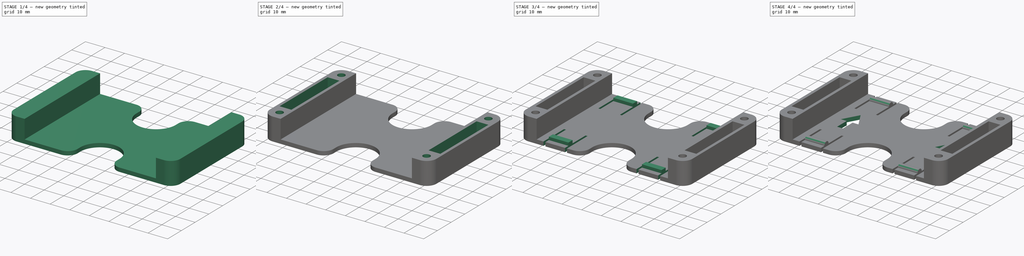
[diagram: build sequence overview — one tinted view per stage of 4, left to right]
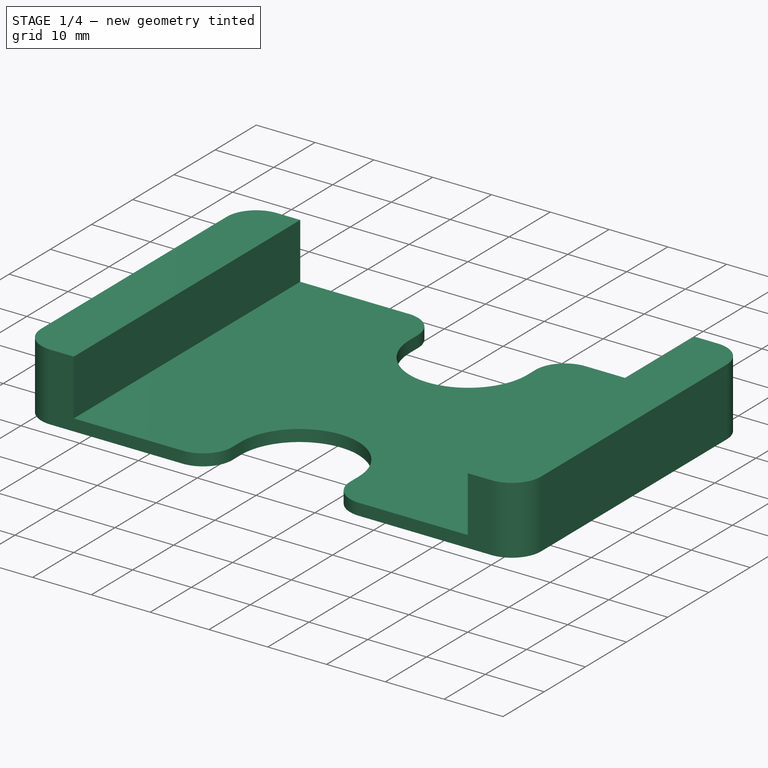
[diagram: stage 1 of 4 — iso view after this stage's code; geometry added in this stage tinted green]
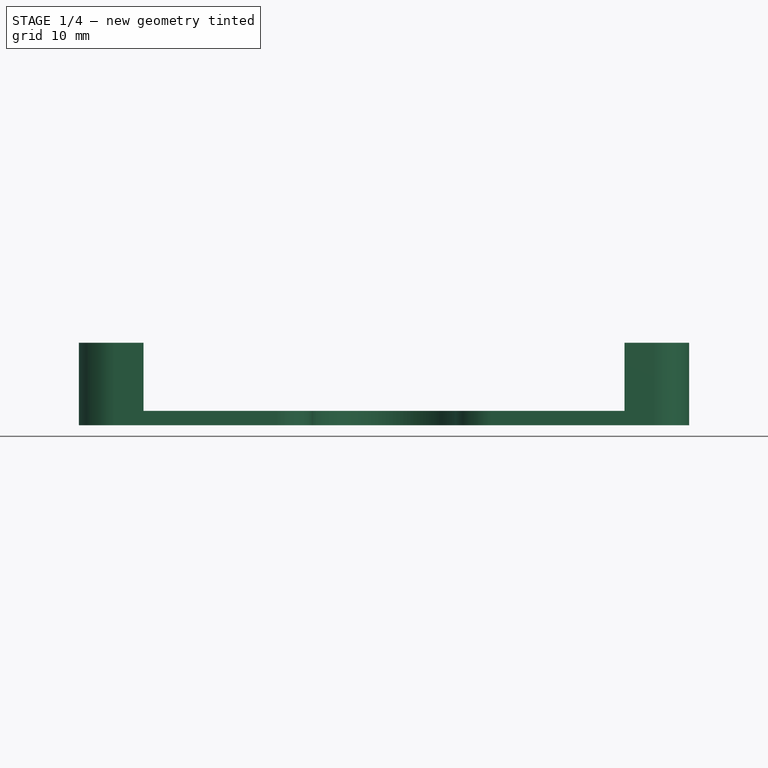
[diagram: stage 1 of 4 — front view after this stage's code; geometry added in this stage tinted green]
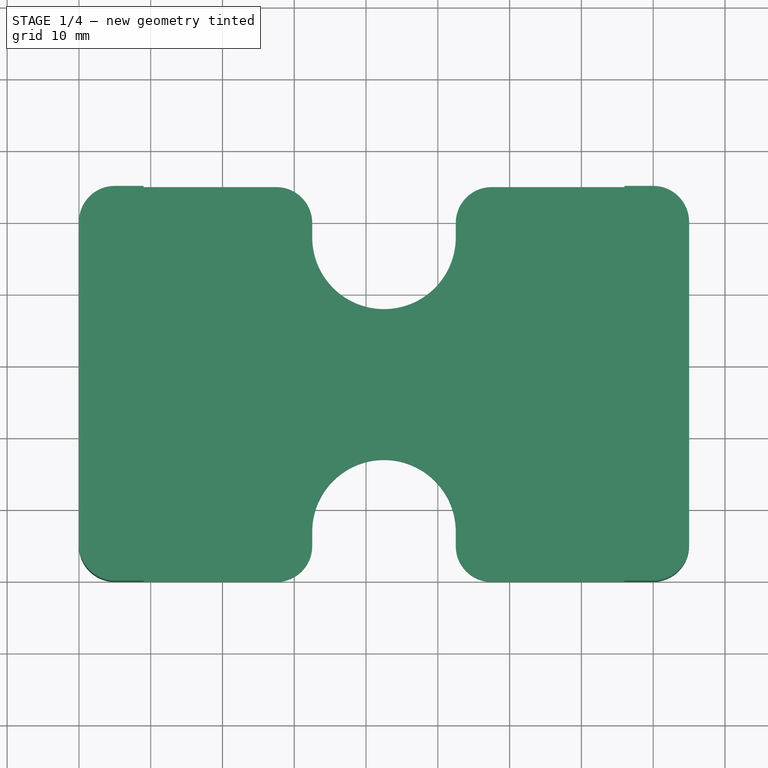
[diagram: stage 1 of 4 — top view after this stage's code; geometry added in this stage tinted green]
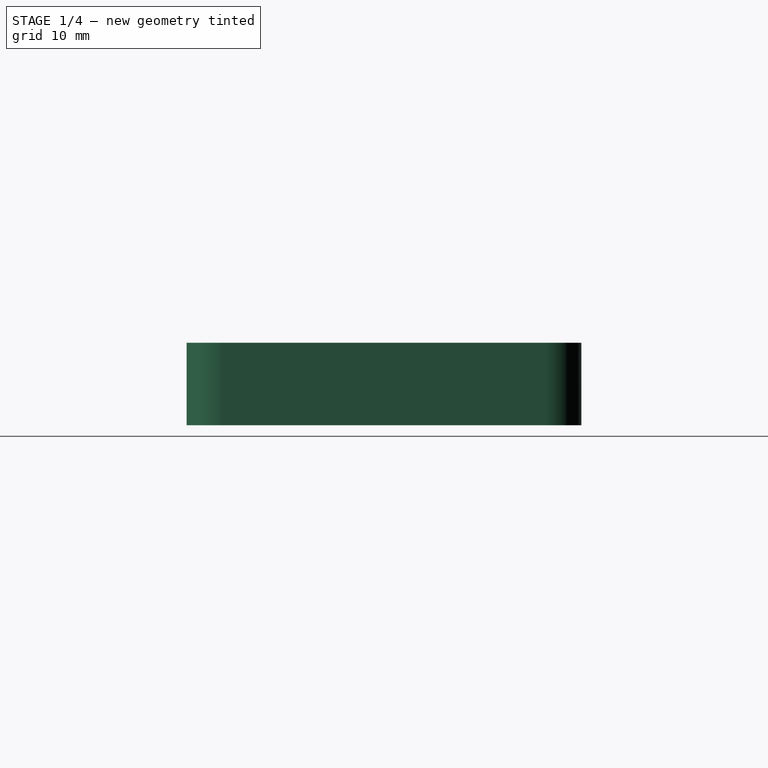
[diagram: stage 1 of 4 — right view after this stage's code; geometry added in this stage tinted green]
FCSTD DOCUMENT
Label: 18650case
objects: Sketcher::SketchObject×9, PartDesign::Pocket×7, PartDesign::Pad×2, PartDesign::Fillet×1
note: 21 computed .brp shape members not serialized (recipe doc carries the construction recipe); baked Part::Feature solids carry a one-line shape summary decoded from their .brp

FEATURE [Sketcher::SketchObject] Sketch
  sketch-geometry (50):
    g0: ArcOfCircle CenterX=5 CenterY=5 CenterZ=0 NormalX=0 NormalY=0 NormalZ=1 Radius=5 StartAngle=3.14159 EndAngle=4.71239
    g1: ArcOfCircle CenterX=80 CenterY=5 CenterZ=0 NormalX=0 NormalY=0 NormalZ=1 Radius=5 StartAngle=4.71239 EndAngle=6.28319
    g2: ArcOfCircle CenterX=5 CenterY=50 CenterZ=0 NormalX=0 NormalY=0 NormalZ=1 Radius=5 StartAngle=1.5708 EndAngle=3.14159
    g3: ArcOfCircle CenterX=80 CenterY=50 CenterZ=0 NormalX=0 NormalY=0 NormalZ=1 Radius=5 StartAngle=0 EndAngle=1.5708
    g4: LineSegment StartX=85 StartY=50 StartZ=0 EndX=85 EndY=5 EndZ=0
    g5: LineSegment [constr] StartX=85 StartY=5 StartZ=0 EndX=80 EndY=5 EndZ=0
    g6: LineSegment [constr] StartX=80 StartY=5 StartZ=0 EndX=80 EndY=0 EndZ=0
    g7: LineSegment [constr] StartX=5 StartY=0 StartZ=0 EndX=5 EndY=5 EndZ=0
    g8: LineSegment [constr] StartX=5 StartY=5 StartZ=0 EndX=0 EndY=5 EndZ=0
    g9: LineSegment StartX=0 StartY=5 StartZ=0 EndX=0 EndY=50 EndZ=0
    g10: LineSegment [constr] StartX=0 StartY=50 StartZ=0 EndX=5 EndY=50 EndZ=0
    g11: LineSegment [constr] StartX=5 StartY=50 StartZ=0 EndX=5 EndY=55 EndZ=0
    g12: LineSegment [constr] StartX=80 StartY=55 StartZ=0 EndX=80 EndY=50 EndZ=0
    g13: LineSegment [constr] StartX=80 StartY=50 StartZ=0 EndX=85 EndY=50 EndZ=0
    g14: ArcOfCircle CenterX=42.5 CenterY=48 CenterZ=0 NormalX=0 NormalY=0 NormalZ=1 Radius=10 StartAngle=3.14159 EndAngle=6.28319
    g15: ArcOfCircle CenterX=57.5 CenterY=50 CenterZ=0 NormalX=0 NormalY=0 NormalZ=1 Radius=5 StartAngle=1.5708 EndAngle=3.14159
    g16: ArcOfCircle CenterX=27.5 CenterY=50 CenterZ=0 NormalX=0 NormalY=0 NormalZ=1 Radius=5 StartAngle=0 EndAngle=1.5708
    g17: LineSegment StartX=32.5 StartY=50 StartZ=0 EndX=32.5 EndY=48 EndZ=0
    g18: LineSegment StartX=52.5 StartY=50 StartZ=0 EndX=52.5 EndY=48 EndZ=0
    g19: LineSegment StartX=57.5 StartY=55 StartZ=0 EndX=80 EndY=55 EndZ=0
    g20: LineSegment StartX=5 StartY=55 StartZ=0 EndX=27.5 EndY=55 EndZ=0
    g21: LineSegment [constr] StartX=57.5 StartY=55 StartZ=0 EndX=57.5 EndY=50 EndZ=0
    g22: LineSegment [constr] StartX=57.5 StartY=50 StartZ=0 EndX=52.5 EndY=50 EndZ=0
    g23: LineSegment [constr] StartX=27.5 StartY=55 StartZ=0 EndX=27.5 EndY=50 EndZ=0
    g24: LineSegment [constr] StartX=27.5 StartY=50 StartZ=0 EndX=32.5 EndY=50 EndZ=0
    g25: LineSegment [constr] StartX=32.5 StartY=48 StartZ=0 EndX=42.5 EndY=48 EndZ=0
    g26: LineSegment [constr] StartX=42.5 StartY=48 StartZ=0 EndX=52.5 EndY=48 EndZ=0
    g27: ArcOfCircle CenterX=42.5 CenterY=7 CenterZ=0 NormalX=0 NormalY=0 NormalZ=1 Radius=10 StartAngle=0 EndAngle=3.14159
    g28: ArcOfCircle CenterX=57.5 CenterY=5 CenterZ=0 NormalX=0 NormalY=0 NormalZ=1 Radius=5 StartAngle=3.14159 EndAngle=4.71239
    g29: ArcOfCircle CenterX=27.5 CenterY=5 CenterZ=0 NormalX=0 NormalY=0 NormalZ=1 Radius=5 StartAngle=4.71239 EndAngle=6.28319
    g30: LineSegment StartX=5 StartY=0 StartZ=0 EndX=27.5 EndY=0 EndZ=0
    g31: LineSegment [constr] StartX=27.5 StartY=0 StartZ=0 EndX=27.5 EndY=5 EndZ=0
    g32: LineSegment [constr] StartX=27.5 StartY=5 StartZ=0 EndX=32.5 EndY=5 EndZ=0
    g33: LineSegment StartX=32.5 StartY=5 StartZ=0 EndX=32.5 EndY=7 EndZ=0
    g34: LineSegment [constr] StartX=32.5 StartY=7 StartZ=0 EndX=42.5 EndY=7 EndZ=0
    g35: LineSegment [constr] StartX=42.5 StartY=7 StartZ=0 EndX=52.5 EndY=7 EndZ=0
    g36: LineSegment StartX=52.5 StartY=7 StartZ=0 EndX=52.5 EndY=5 EndZ=0
    g37: LineSegment [constr] StartX=52.5 StartY=5 StartZ=0 EndX=57.5 EndY=5 EndZ=0
    g38: LineSegment [constr] StartX=57.5 StartY=5 StartZ=0 EndX=57.5 EndY=0 EndZ=0
    g39: LineSegment StartX=57.5 StartY=0 StartZ=0 EndX=80 EndY=0 EndZ=0
    g40: LineSegment [constr] StartX=42.5 StartY=48 StartZ=0 EndX=42.5 EndY=7 EndZ=0
    g41: LineSegment [constr] StartX=5 StartY=50 StartZ=0 EndX=27.5 EndY=50 EndZ=0
    g42: LineSegment [constr] StartX=27.5 StartY=55 StartZ=0 EndX=57.5 EndY=55 EndZ=0
    g43: LineSegment [constr] StartX=57.5 StartY=50 StartZ=0 EndX=80 EndY=50 EndZ=0
    g44: LineSegment [constr] StartX=5 StartY=5 StartZ=0 EndX=27.5 EndY=5 EndZ=0
    g45: LineSegment [constr] StartX=57.5 StartY=5 StartZ=0 EndX=80 EndY=5 EndZ=0
    g46: LineSegment [constr] StartX=27.5 StartY=0 StartZ=0 EndX=57.5 EndY=0 EndZ=0
    g47: LineSegment [constr] StartX=32.5 StartY=50 StartZ=0 EndX=52.5 EndY=50 EndZ=0
    g48: LineSegment [constr] StartX=32.5 StartY=5 StartZ=0 EndX=52.5 EndY=5 EndZ=0
    g49: LineSegment [constr] StartX=80 StartY=50 StartZ=0 EndX=80 EndY=5 EndZ=0
  constraints (130):
    c: Coincident(g4,g3)
    c: Coincident(g4,g1)
    c: Coincident(g4,g5)
    c: Coincident(g5,g1)
    c: Horizontal(g5)
    c: Coincident(g5,g6)
    c: Coincident(g6,g1)
    c: Coincident(g7,g0)
    c: Vertical(g7)
    c: Coincident(g7,g8)
    c: Coincident(g8,g0)
    c: Horizontal(g8)
    c: Coincident(g8,g9)
    c: Coincident(g9,g2)
    c: Vertical(g9)
    c: Coincident(g9,g10)
    c: Coincident(g10,g2)
    c: Horizontal(g10)
    c: Coincident(g10,g11)
    c: Coincident(g11,g2)
    c: Vertical(g11)
    c: Coincident(g12,g3)
    c: Coincident(g12,g13)
    c: Coincident(g13,g3)
    c: Horizontal(g13)
    c: Vertical(g4)
    c: Vertical(g6)
    c: Vertical(g12)
    c: Radius(g2) = 5
    c: DistanceX(g0) = 0
    c: DistanceY(g0) = 0
    c: Coincident(g17,g16)
    c: Coincident(g17,g14)
    c: Vertical(g17)
    c: Coincident(g18,g15)
    c: Coincident(g18,g14)
    c: Vertical(g18)
    c: Coincident(g19,g15)
    c: Coincident(g19,g3)
    c: Horizontal(g19)
    c: Coincident(g20,g2)
    c: Coincident(g20,g16)
    c: Horizontal(g20)
    c: Coincident(g21,g15)
    c: Coincident(g21,g15)
    c: Coincident(g21,g22)
    c: Coincident(g22,g15)
    c: Horizontal(g22)
    c: Vertical(g21)
    c: Coincident(g23,g16)
    c: Coincident(g23,g16)
    c: Coincident(g23,g24)
    c: Coincident(g24,g16)
    c: Horizontal(g24)
    c: Vertical(g23)
    c: Coincident(g25,g14)
    c: Coincident(g25,g14)
    c: Coincident(g25,g26)
    c: Coincident(g26,g14)
    c: Horizontal(g26)
    c: Horizontal(g25)
    c: Coincident(g12,g3)
    c: Coincident(g30,g0)
    c: Coincident(g30,g29)
    c: Horizontal(g30)
    c: Coincident(g30,g31)
    c: Coincident(g31,g29)
    c: Vertical(g31)
    c: Coincident(g31,g32)
    c: Coincident(g32,g29)
    c: Horizontal(g32)
    c: Coincident(g32,g33)
    c: Coincident(g33,g27)
    c: Coincident(g33,g34)
    c: Coincident(g34,g27)
    c: Horizontal(g34)
    c: Coincident(g34,g35)
    c: Coincident(g35,g27)
    c: Coincident(g35,g36)
    c: Coincident(g36,g28)
    c: Vertical(g36)
    c: Coincident(g36,g37)
    c: Coincident(g37,g28)
    c: Coincident(g37,g38)
    c: Coincident(g38,g28)
    c: Vertical(g38)
    c: Coincident(g38,g39)
    c: Coincident(g39,g1)
    c: Horizontal(g39)
    c: Horizontal(g37)
    c: Horizontal(g35)
    c: Vertical(g33)
    c: Coincident(g40,g14)
    c: Coincident(g40,g27)
    c: Vertical(g40)
    c: DistanceX(g0,g1) = 85
    c: DistanceX(g27,g27) = 20
    c: DistanceY(g1,g3) = 55
    c: Coincident(g41,g2)
    c: Coincident(g41,g16)
    c: Horizontal(g41)
    c: Coincident(g42,g16)
    c: Coincident(g42,g15)
    c: Horizontal(g42)
    c: Coincident(g43,g15)
    c: Coincident(g43,g3)
    c: Horizontal(g43)
    c: Coincident(g44,g0)
    c: Coincident(g44,g29)
    c: Horizontal(g44)
    c: Coincident(g45,g28)
    c: Coincident(g45,g1)
    c: Horizontal(g45)
    c: Coincident(g46,g29)
    c: Coincident(g46,g28)
    c: Horizontal(g46)
    c: Coincident(g47,g16)
    c: Coincident(g47,g15)
    c: Horizontal(g47)
    c: Coincident(g48,g29)
    c: Coincident(g48,g28)
    c: Horizontal(g48)
    c: Equal(g39,g30)
    c: Equal(g17,g33)
    c: Coincident(g7,g0)
    c: Coincident(g49,g3)
    c: Coincident(g49,g1)
    c: Vertical(g49)
    c: Equal(g14,g27)
    c: DistanceY(g27,g1) = -7
FEATURE [PartDesign::Pad] Pad
  Length = 11.5
  MirroredExtent = false
  Sketch = -> Sketch
FEATURE [Sketcher::SketchObject] Sketch001
  Placement = pos=(0,0,11.5) rot=(0,0,1;0rad)
  Support = -> Pad [Face22]
  sketch-geometry (4):
    g0: LineSegment StartX=9 StartY=60 StartZ=0 EndX=76 EndY=60 EndZ=0
    g1: LineSegment StartX=76 StartY=60 StartZ=0 EndX=76 EndY=-5 EndZ=0
    g2: LineSegment StartX=76 StartY=-5 StartZ=0 EndX=9 EndY=-5 EndZ=0
    g3: LineSegment StartX=9 StartY=-5 StartZ=0 EndX=9 EndY=60 EndZ=0
  constraints (12):
    c: Coincident(g0,g1)
    c: Coincident(g1,g2)
    c: Coincident(g2,g3)
    c: Coincident(g3,g0)
    c: Horizontal(g0)
    c: Horizontal(g2)
    c: Vertical(g1)
    c: Vertical(g3)
    c: DistanceX(g2) = 9
    c: DistanceY(g2) = -5
    c: DistanceY(g1) = -65
    c: DistanceX(g2) = -67
FEATURE [PartDesign::Pocket] Pocket
  Length = 9.5
  Sketch = -> Sketch001
  Type = 0
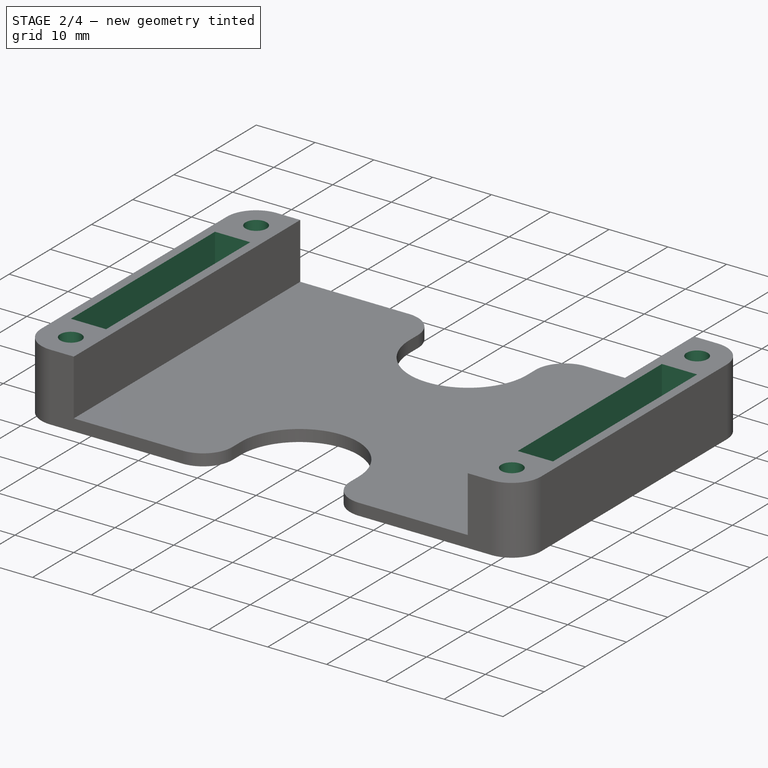
[diagram: stage 2 of 4 — iso view after this stage's code; geometry added in this stage tinted green]
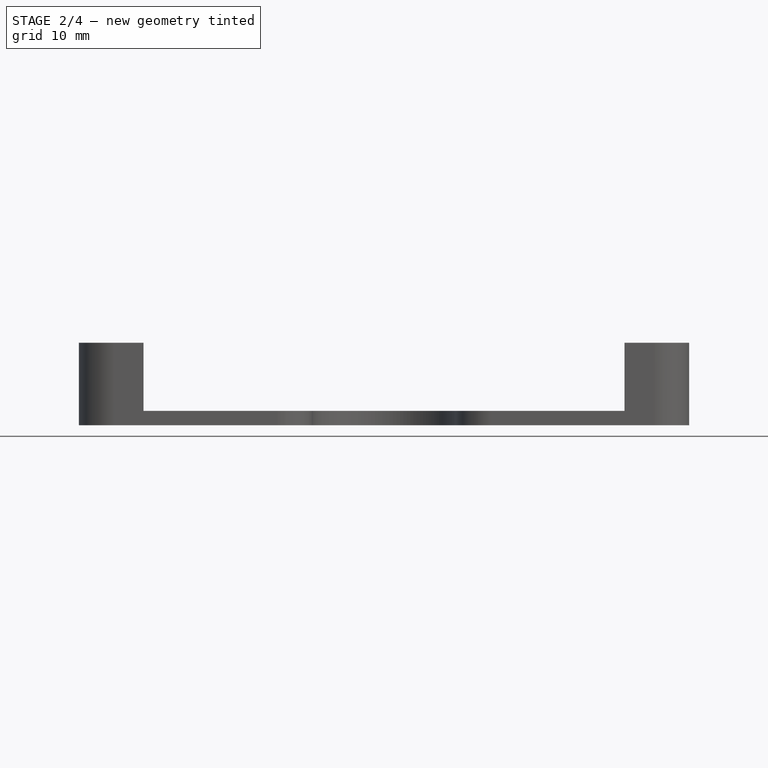
[diagram: stage 2 of 4 — front view after this stage's code; geometry added in this stage tinted green]
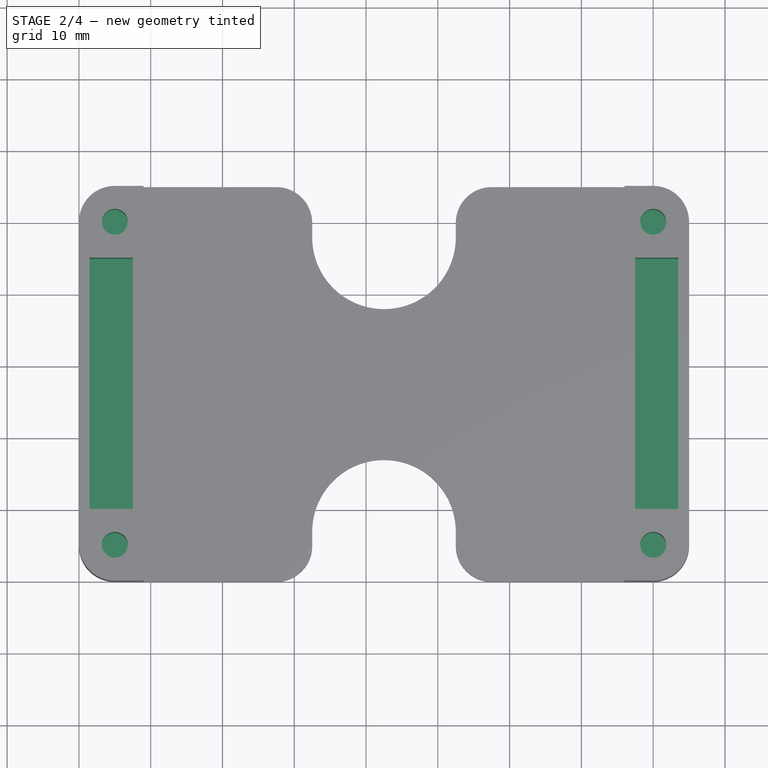
[diagram: stage 2 of 4 — top view after this stage's code; geometry added in this stage tinted green]
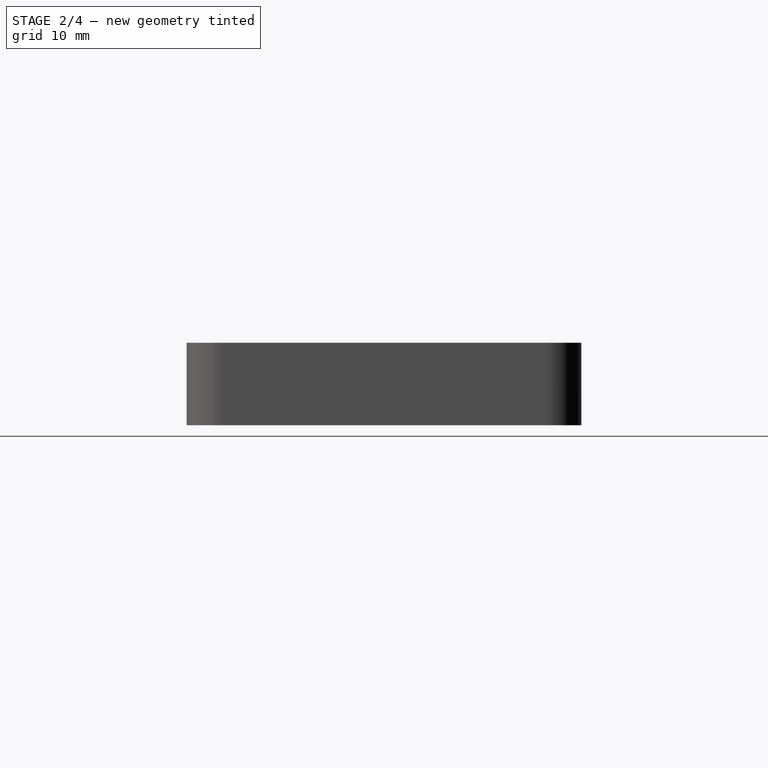
[diagram: stage 2 of 4 — right view after this stage's code; geometry added in this stage tinted green]
FEATURE [Sketcher::SketchObject] Sketch002
  Placement = pos=(0,0,0) rot=(1,0,0;3.14159rad)
  Support = -> Pocket [Face4]
  sketch-geometry (24):
    g0: LineSegment StartX=2 StartY=-51.7321 StartZ=0 EndX=2 EndY=-48.2679 EndZ=0
    g1: LineSegment StartX=2 StartY=-48.2679 StartZ=0 EndX=5 EndY=-46.5359 EndZ=0
    g2: LineSegment StartX=5 StartY=-46.5359 StartZ=0 EndX=8 EndY=-48.2679 EndZ=0
    g3: LineSegment StartX=8 StartY=-48.2679 StartZ=0 EndX=8 EndY=-51.7321 EndZ=0
    g4: LineSegment StartX=8 StartY=-51.7321 StartZ=0 EndX=5 EndY=-53.4641 EndZ=0
    g5: LineSegment StartX=5 StartY=-53.4641 StartZ=0 EndX=2 EndY=-51.7321 EndZ=0
    g6: LineSegment [constr] StartX=2 StartY=-51.7321 StartZ=0 EndX=5 EndY=-50 EndZ=0
    g7: LineSegment [constr] StartX=5 StartY=-50 StartZ=0 EndX=2 EndY=-48.2679 EndZ=0
    g8: LineSegment [constr] StartX=8 StartY=-48.2679 StartZ=0 EndX=5 EndY=-50 EndZ=0
    g9: LineSegment [constr] StartX=5 StartY=-50 StartZ=0 EndX=8 EndY=-51.7321 EndZ=0
    g10: LineSegment [constr] StartX=5 StartY=-50 StartZ=0 EndX=5 EndY=-53.4641 EndZ=0
    g11: Circle CenterX=80 CenterY=-50 CenterZ=0 NormalX=0 NormalY=0 NormalZ=1 Radius=3
    g12: LineSegment StartX=77 StartY=-3.26795 StartZ=0 EndX=77 EndY=-6.73205 EndZ=0
    g13: LineSegment StartX=77 StartY=-6.73205 StartZ=0 EndX=80 EndY=-8.4641 EndZ=0
    g14: LineSegment StartX=80 StartY=-8.4641 StartZ=0 EndX=83 EndY=-6.73205 EndZ=0
    g15: LineSegment StartX=83 StartY=-6.73205 StartZ=0 EndX=83 EndY=-3.26795 EndZ=0
    g16: LineSegment StartX=83 StartY=-3.26795 StartZ=0 EndX=80 EndY=-1.5359 EndZ=0
    g17: LineSegment StartX=80 StartY=-1.5359 StartZ=0 EndX=77 EndY=-3.26795 EndZ=0
    g18: LineSegment [constr] StartX=77 StartY=-6.73205 StartZ=0 EndX=80 EndY=-5 EndZ=0
    g19: LineSegment [constr] StartX=80 StartY=-5 StartZ=0 EndX=77 EndY=-3.26795 EndZ=0
    g20: LineSegment [constr] StartX=83 StartY=-3.26795 StartZ=0 EndX=80 EndY=-5 EndZ=0
    g21: LineSegment [constr] StartX=80 StartY=-5 StartZ=0 EndX=83 EndY=-6.73205 EndZ=0
    g22: LineSegment [constr] StartX=80 StartY=-5 StartZ=0 EndX=80 EndY=-8.4641 EndZ=0
    g23: Circle CenterX=5 CenterY=-5 CenterZ=0 NormalX=0 NormalY=0 NormalZ=1 Radius=3
  constraints (64):
    c: Vertical(g0)
    c: Coincident(g0,g1)
    c: Coincident(g1,g2)
    c: Coincident(g2,g3)
    c: Vertical(g3)
    c: Coincident(g3,g4)
    c: Coincident(g4,g5)
    c: Coincident(g5,g0)
    c: Coincident(g6,g0)
    c: Coincident(g6,g7)
    c: Coincident(g7,g0)
    c: Coincident(g8,g6)
    c: Coincident(g8,g9)
    c: Coincident(g9,g3)
    c: Coincident(g10,g6)
    c: Coincident(g10,g4)
    c: Vertical(g10)
    c: Equal(g7,g6)
    c: Equal(g6,g10)
    c: Equal(g10,g9)
    c: Equal(g9,g8)
    c: Equal(g4,g5)
    c: Equal(g5,g0)
    c: Equal(g0,g1)
    c: Equal(g1,g2)
    c: DistanceX(g0,g3) = 6
    c: Coincident(g2,g8)
    c: DistanceX(g6) = 5
    c: DistanceY(g6) = -50
    c: Radius(g11) = 3
    c: DistanceX(g11) = 80
    c: DistanceY(g11) = -50
    c: Vertical(g12)
    c: Coincident(g12,g13)
    c: Coincident(g13,g14)
    c: Coincident(g14,g15)
    c: Vertical(g15)
    c: Coincident(g15,g16)
    c: Coincident(g16,g17)
    c: Coincident(g17,g12)
    c: Coincident(g18,g12)
    c: Coincident(g18,g19)
    c: Coincident(g19,g12)
    c: Coincident(g20,g18)
    c: Coincident(g20,g21)
    c: Coincident(g21,g14)
    c: Equal(g14,g13)
    c: Equal(g13,g12)
    c: Equal(g12,g17)
    c: Equal(g17,g16)
    c: Coincident(g22,g18)
    c: Coincident(g22,g13)
    c: Equal(g20,g21)
    c: Equal(g21,g22)
    c: Equal(g22,g18)
    c: Equal(g18,g19)
    c: Vertical(g22)
    c: Coincident(g15,g20)
    c: DistanceX(g12,g14) = 6
    c: DistanceX(g18) = 80
    c: DistanceY(g18) = -5
    c: Radius(g23) = 3
    c: DistanceX(g23) = 5
    c: DistanceY(g23) = -5
FEATURE [PartDesign::Pocket] Pocket001
  Length = 3
  Sketch = -> Sketch002
  Type = 0
FEATURE [Sketcher::SketchObject] Sketch003
  Placement = pos=(0,0,11.5) rot=(0,0,1;0rad)
  Support = -> Pocket001 [Face6]
  sketch-geometry (10):
    g0: LineSegment StartX=7.5 StartY=45 StartZ=0 EndX=1.5 EndY=45 EndZ=0
    g1: LineSegment StartX=1.5 StartY=45 StartZ=0 EndX=1.5 EndY=10 EndZ=0
    g2: LineSegment StartX=1.5 StartY=10 StartZ=0 EndX=7.5 EndY=10 EndZ=0
    g3: LineSegment StartX=7.5 StartY=10 StartZ=0 EndX=7.5 EndY=45 EndZ=0
    g4: LineSegment StartX=77.5 StartY=45 StartZ=0 EndX=83.5 EndY=45 EndZ=0
    g5: LineSegment StartX=83.5 StartY=45 StartZ=0 EndX=83.5 EndY=10 EndZ=0
    g6: LineSegment StartX=83.5 StartY=10 StartZ=0 EndX=77.5 EndY=10 EndZ=0
    g7: LineSegment StartX=77.5 StartY=10 StartZ=0 EndX=77.5 EndY=45 EndZ=0
    g8: LineSegment [constr] StartX=7.5 StartY=45 StartZ=0 EndX=77.5 EndY=45 EndZ=0
    g9: LineSegment [constr] StartX=7.5 StartY=10 StartZ=0 EndX=77.5 EndY=10 EndZ=0
  constraints (28):
    c: Coincident(g0,g1)
    c: Coincident(g1,g2)
    c: Coincident(g2,g3)
    c: Coincident(g3,g0)
    c: Horizontal(g0)
    c: Horizontal(g2)
    c: Vertical(g1)
    c: Vertical(g3)
    c: Coincident(g4,g5)
    c: Coincident(g5,g6)
    c: Coincident(g6,g7)
    c: Coincident(g7,g4)
    c: Horizontal(g4)
    c: Horizontal(g6)
    c: Vertical(g5)
    c: Vertical(g7)
    c: Coincident(g8,g0)
    c: Coincident(g8,g4)
    c: Coincident(g9,g2)
    c: Coincident(g9,g6)
    c: Horizontal(g9)
    c: Horizontal(g8)
    c: DistanceX(g0) = -6
    c: DistanceX(g4) = 6
    c: DistanceX(g8) = 70
    c: DistanceX(g1) = 1.5
    c: DistanceY(g1) = 10
    c: DistanceY(g1) = -35
FEATURE [PartDesign::Pocket] Pocket002
  Length = 9.5
  Sketch = -> Sketch003
  Type = 0
FEATURE [Sketcher::SketchObject] Sketch004
  Placement = pos=(0,0,11.5) rot=(0,0,1;0rad)
  Support = -> Pocket002 [Face6]
  sketch-geometry (8):
    g0: Circle CenterX=5 CenterY=50 CenterZ=0 NormalX=0 NormalY=0 NormalZ=1 Radius=1.8
    g1: Circle CenterX=80 CenterY=50 CenterZ=0 NormalX=0 NormalY=0 NormalZ=1 Radius=1.8
    g2: Circle CenterX=80 CenterY=5 CenterZ=0 NormalX=0 NormalY=0 NormalZ=1 Radius=1.8
    g3: Circle CenterX=5 CenterY=5 CenterZ=0 NormalX=0 NormalY=0 NormalZ=1 Radius=1.8
    g4: LineSegment [constr] StartX=5 StartY=50 StartZ=0 EndX=80 EndY=50 EndZ=0
    g5: LineSegment [constr] StartX=80 StartY=50 StartZ=0 EndX=80 EndY=5 EndZ=0
    g6: LineSegment [constr] StartX=80 StartY=5 StartZ=0 EndX=5 EndY=5 EndZ=0
    g7: LineSegment [constr] StartX=5 StartY=5 StartZ=0 EndX=5 EndY=50 EndZ=0
  constraints (20):
    c: Coincident(g4,g5)
    c: Coincident(g5,g6)
    c: Coincident(g6,g7)
    c: Coincident(g7,g4)
    c: Horizontal(g4)
    c: Horizontal(g6)
    c: Vertical(g5)
    c: Vertical(g7)
    c: Coincident(g1,g4)
    c: Coincident(g0,g4)
    c: Coincident(g3,g6)
    c: Coincident(g2,g5)
    c: DistanceX(g3) = 5
    c: DistanceY(g3) = 5
    c: Equal(g3,g2)
    c: Equal(g2,g1)
    c: Equal(g1,g0)
    c: Radius(g0) = 1.8
    c: DistanceX(g6) = -75
    c: DistanceY(g7) = 45
FEATURE [PartDesign::Pocket] Pocket003
  Length = 8.3
  Sketch = -> Sketch004
  Type = 0
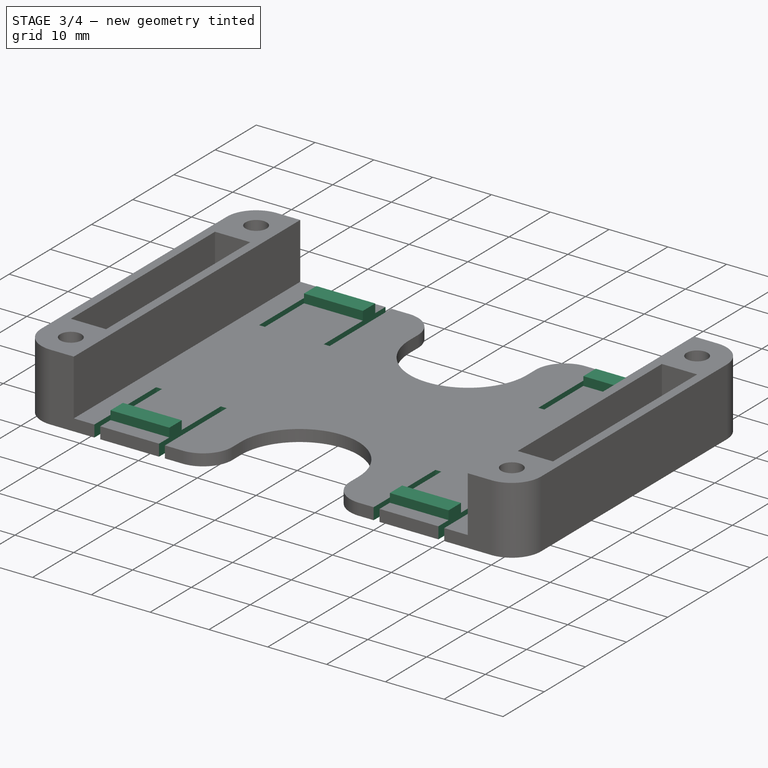
[diagram: stage 3 of 4 — iso view after this stage's code; geometry added in this stage tinted green]
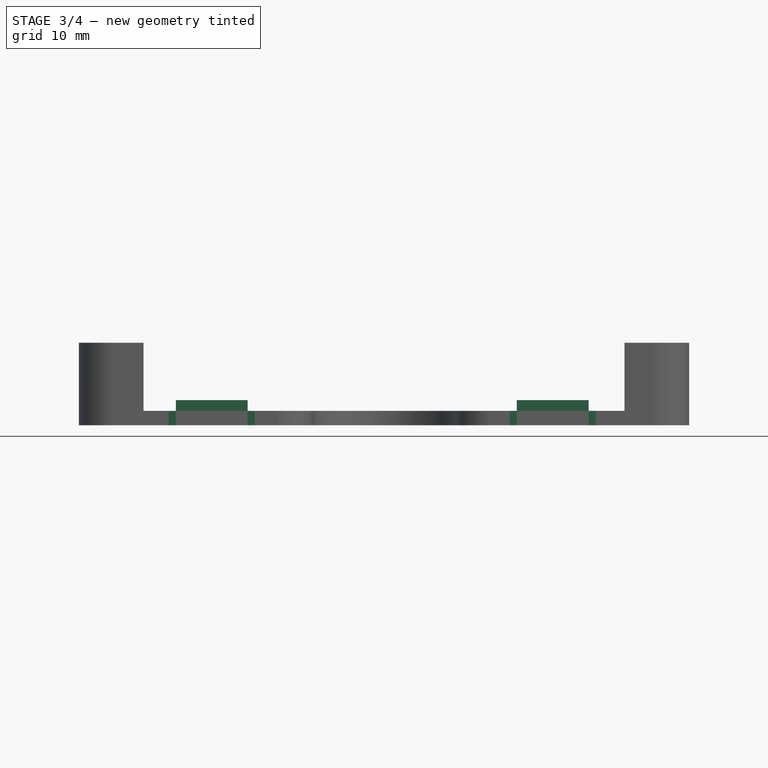
[diagram: stage 3 of 4 — front view after this stage's code; geometry added in this stage tinted green]
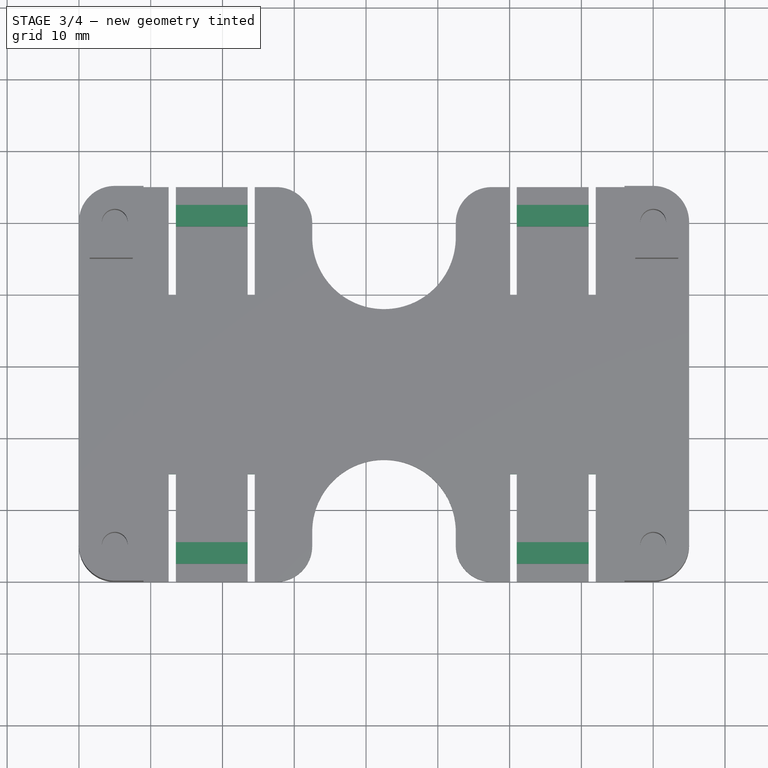
[diagram: stage 3 of 4 — top view after this stage's code; geometry added in this stage tinted green]
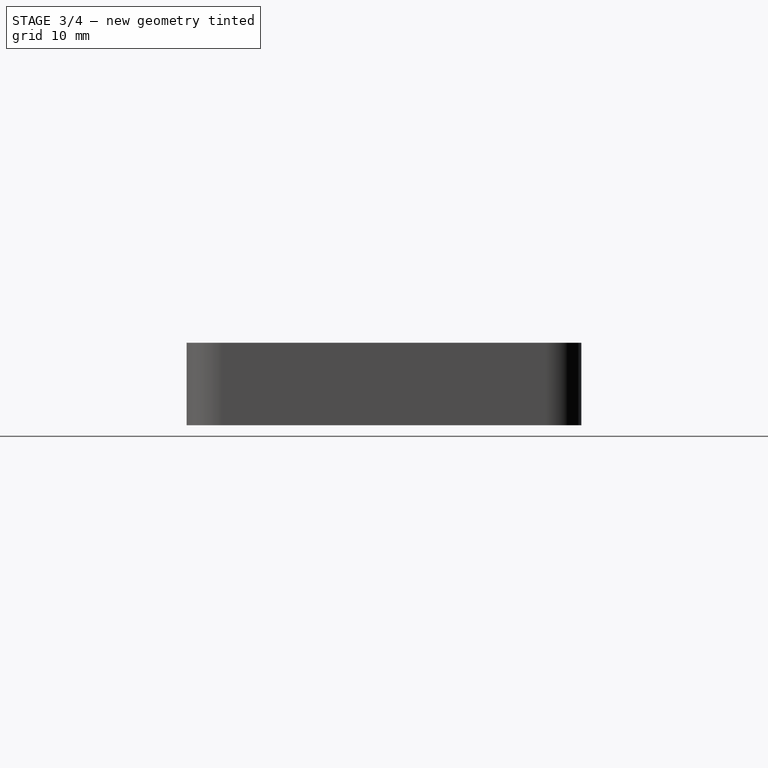
[diagram: stage 3 of 4 — right view after this stage's code; geometry added in this stage tinted green]
FEATURE [Sketcher::SketchObject] Sketch006
  Placement = pos=(0,0,2) rot=(0,0,1;0rad)
  Support = -> Pocket003 [Face2]
  sketch-geometry (22):
    g0: LineSegment StartX=72 StartY=40 StartZ=0 EndX=71 EndY=40 EndZ=0
    g1: LineSegment StartX=71 StartY=40 StartZ=0 EndX=71 EndY=55 EndZ=0
    g2: LineSegment StartX=71 StartY=55 StartZ=0 EndX=72 EndY=55 EndZ=0
    g3: LineSegment StartX=72 StartY=55 StartZ=0 EndX=72 EndY=40 EndZ=0
    g4: LineSegment StartX=61 StartY=40 StartZ=0 EndX=60 EndY=40 EndZ=0
    g5: LineSegment StartX=60 StartY=40 StartZ=0 EndX=60 EndY=55 EndZ=0
    g6: LineSegment StartX=60 StartY=55 StartZ=0 EndX=61 EndY=55 EndZ=0
    g7: LineSegment StartX=61 StartY=55 StartZ=0 EndX=61 EndY=40 EndZ=0
    g8: LineSegment StartX=24.5 StartY=40 StartZ=0 EndX=23.5 EndY=40 EndZ=0
    g9: LineSegment StartX=23.5 StartY=40 StartZ=0 EndX=23.5 EndY=55 EndZ=0
    g10: LineSegment StartX=23.5 StartY=55 StartZ=0 EndX=24.5 EndY=55 EndZ=0
    g11: LineSegment StartX=24.5 StartY=55 StartZ=0 EndX=24.5 EndY=40 EndZ=0
    g12: LineSegment StartX=13.5 StartY=40 StartZ=0 EndX=12.5 EndY=40 EndZ=0
    g13: LineSegment StartX=12.5 StartY=40 StartZ=0 EndX=12.5 EndY=55 EndZ=0
    g14: LineSegment StartX=12.5 StartY=55 StartZ=0 EndX=13.5 EndY=55 EndZ=0
    g15: LineSegment StartX=13.5 StartY=55 StartZ=0 EndX=13.5 EndY=40 EndZ=0
    g16: LineSegment [constr] StartX=61 StartY=55 StartZ=0 EndX=71 EndY=55 EndZ=0
    g17: LineSegment [constr] StartX=61 StartY=40 StartZ=0 EndX=71 EndY=40 EndZ=0
    g18: LineSegment [constr] StartX=13.5 StartY=55 StartZ=0 EndX=23.5 EndY=55 EndZ=0
    g19: LineSegment [constr] StartX=13.5 StartY=40 StartZ=0 EndX=23.5 EndY=40 EndZ=0
    g20: LineSegment [constr] StartX=24.5 StartY=55 StartZ=0 EndX=60 EndY=55 EndZ=0
    g21: LineSegment [constr] StartX=24.5 StartY=40 StartZ=0 EndX=60 EndY=40 EndZ=0
  constraints (60):
    c: Coincident(g0,g1)
    c: Coincident(g1,g2)
    c: Coincident(g2,g3)
    c: Coincident(g3,g0)
    c: Horizontal(g0)
    c: Horizontal(g2)
    c: Vertical(g1)
    c: Vertical(g3)
    c: Coincident(g4,g5)
    c: Coincident(g5,g6)
    c: Coincident(g6,g7)
    c: Coincident(g7,g4)
    c: Horizontal(g4)
    c: Horizontal(g6)
    c: Vertical(g5)
    c: Vertical(g7)
    c: Coincident(g8,g9)
    c: Coincident(g9,g10)
    c: Coincident(g10,g11)
    c: Coincident(g11,g8)
    c: Horizontal(g8)
    c: Horizontal(g10)
    c: Vertical(g9)
    c: Vertical(g11)
    c: Coincident(g12,g13)
    c: Coincident(g13,g14)
    c: Coincident(g14,g15)
    c: Coincident(g15,g12)
    c: Horizontal(g12)
    c: Horizontal(g14)
    c: Vertical(g13)
    c: Vertical(g15)
    c: Coincident(g16,g6)
    c: Horizontal(g16)
    c: Coincident(g17,g0)
    c: Horizontal(g17)
    c: Coincident(g16,g1)
    c: Coincident(g18,g14)
    c: Coincident(g18,g9)
    c: Horizontal(g18)
    c: Coincident(g19,g12)
    c: Coincident(g19,g8)
    c: Horizontal(g19)
    c: Equal(g10,g14)
    c: Equal(g14,g6)
    c: Equal(g6,g2)
    c: Coincident(g20,g10)
    c: Coincident(g20,g5)
    c: Horizontal(g20)
    c: Coincident(g21,g8)
    c: Coincident(g21,g4)
    c: Horizontal(g21)
    c: Coincident(g17,g4)
    c: Equal(g19,g17)
    c: DistanceX(g19) = 10
    c: DistanceX(g12) = -1
    c: DistanceY(g3) = -15
    c: DistanceX(g13) = 12.5
    c: DistanceY(g13) = 55
    c: DistanceX(g20) = 35.5
FEATURE [PartDesign::Pocket] Pocket004
  Length = 5
  Sketch = -> Sketch006
  Type = 0
FEATURE [Sketcher::SketchObject] Sketch007
  Placement = pos=(0,0,2) rot=(0,0,1;0rad)
  Support = -> Pocket004 [Face2]
  sketch-geometry (22):
    g0: LineSegment StartX=72 StartY=0 StartZ=0 EndX=71 EndY=0 EndZ=0
    g1: LineSegment StartX=71 StartY=0 StartZ=0 EndX=71 EndY=15 EndZ=0
    g2: LineSegment StartX=71 StartY=15 StartZ=0 EndX=72 EndY=15 EndZ=0
    g3: LineSegment StartX=72 StartY=15 StartZ=0 EndX=72 EndY=0 EndZ=0
    g4: LineSegment StartX=61 StartY=0 StartZ=0 EndX=60 EndY=0 EndZ=0
    g5: LineSegment StartX=60 StartY=0 StartZ=0 EndX=60 EndY=15 EndZ=0
    g6: LineSegment StartX=60 StartY=15 StartZ=0 EndX=61 EndY=15 EndZ=0
    g7: LineSegment StartX=61 StartY=15 StartZ=0 EndX=61 EndY=0 EndZ=0
    g8: LineSegment StartX=24.5 StartY=0 StartZ=0 EndX=23.5 EndY=0 EndZ=0
    g9: LineSegment StartX=23.5 StartY=0 StartZ=0 EndX=23.5 EndY=15 EndZ=0
    g10: LineSegment StartX=23.5 StartY=15 StartZ=0 EndX=24.5 EndY=15 EndZ=0
    g11: LineSegment StartX=24.5 StartY=15 StartZ=0 EndX=24.5 EndY=0 EndZ=0
    g12: LineSegment StartX=13.5 StartY=0 StartZ=0 EndX=12.5 EndY=0 EndZ=0
    g13: LineSegment StartX=12.5 StartY=0 StartZ=0 EndX=12.5 EndY=15 EndZ=0
    g14: LineSegment StartX=12.5 StartY=15 StartZ=0 EndX=13.5 EndY=15 EndZ=0
    g15: LineSegment StartX=13.5 StartY=15 StartZ=0 EndX=13.5 EndY=0 EndZ=0
    g16: LineSegment [constr] StartX=61 StartY=15 StartZ=0 EndX=71 EndY=15 EndZ=0
    g17: LineSegment [constr] StartX=61 StartY=0 StartZ=0 EndX=71 EndY=0 EndZ=0
    g18: LineSegment [constr] StartX=13.5 StartY=15 StartZ=0 EndX=23.5 EndY=15 EndZ=0
    g19: LineSegment [constr] StartX=13.5 StartY=0 StartZ=0 EndX=23.5 EndY=0 EndZ=0
    g20: LineSegment [constr] StartX=24.5 StartY=15 StartZ=0 EndX=60 EndY=15 EndZ=0
    g21: LineSegment [constr] StartX=24.5 StartY=0 StartZ=0 EndX=60 EndY=0 EndZ=0
  constraints (60):
    c: Coincident(g0,g1)
    c: Coincident(g1,g2)
    c: Coincident(g2,g3)
    c: Coincident(g3,g0)
    c: Horizontal(g0)
    c: Horizontal(g2)
    c: Vertical(g1)
    c: Vertical(g3)
    c: Coincident(g4,g5)
    c: Coincident(g5,g6)
    c: Coincident(g6,g7)
    c: Coincident(g7,g4)
    c: Horizontal(g4)
    c: Horizontal(g6)
    c: Vertical(g5)
    c: Vertical(g7)
    c: Coincident(g8,g9)
    c: Coincident(g9,g10)
    c: Coincident(g10,g11)
    c: Coincident(g11,g8)
    c: Horizontal(g8)
    c: Horizontal(g10)
    c: Vertical(g9)
    c: Vertical(g11)
    c: Coincident(g12,g13)
    c: Coincident(g13,g14)
    c: Coincident(g14,g15)
    c: Coincident(g15,g12)
    c: Horizontal(g12)
    c: Horizontal(g14)
    c: Vertical(g13)
    c: Vertical(g15)
    c: Coincident(g16,g6)
    c: Horizontal(g16)
    c: Coincident(g17,g0)
    c: Horizontal(g17)
    c: Coincident(g16,g1)
    c: Coincident(g18,g14)
    c: Coincident(g18,g9)
    c: Horizontal(g18)
    c: Coincident(g19,g12)
    c: Coincident(g19,g8)
    c: Horizontal(g19)
    c: Equal(g10,g14)
    c: Equal(g14,g6)
    c: Equal(g6,g2)
    c: Coincident(g20,g10)
    c: Coincident(g20,g5)
    c: Horizontal(g20)
    c: Coincident(g21,g8)
    c: Coincident(g21,g4)
    c: Horizontal(g21)
    c: Coincident(g17,g4)
    c: Equal(g19,g17)
    c: DistanceX(g19) = 10
    c: DistanceX(g12) = -1
    c: DistanceY(g3) = -15
    c: DistanceX(g13) = 12.5
    c: DistanceY(g13) = 15
    c: DistanceX(g20) = 35.5
FEATURE [PartDesign::Pocket] Pocket005
  Length = 5
  Sketch = -> Sketch007
  Type = 0
FEATURE [Sketcher::SketchObject] Sketch008
  Placement = pos=(0,0,2) rot=(0,0,1;0rad)
  Support = -> Pocket005 [Face2]
  sketch-geometry (22):
    g0: LineSegment StartX=13.5 StartY=5.5 StartZ=0 EndX=23.5 EndY=5.5 EndZ=0
    g1: LineSegment StartX=23.5 StartY=5.5 StartZ=0 EndX=23.5 EndY=2.5 EndZ=0
    g2: LineSegment StartX=23.5 StartY=2.5 StartZ=0 EndX=13.5 EndY=2.5 EndZ=0
    g3: LineSegment StartX=13.5 StartY=2.5 StartZ=0 EndX=13.5 EndY=5.5 EndZ=0
    g4: LineSegment StartX=61 StartY=2.5 StartZ=0 EndX=71 EndY=2.5 EndZ=0
    g5: LineSegment StartX=71 StartY=2.5 StartZ=0 EndX=71 EndY=5.5 EndZ=0
    g6: LineSegment StartX=71 StartY=5.5 StartZ=0 EndX=61 EndY=5.5 EndZ=0
    g7: LineSegment StartX=61 StartY=5.5 StartZ=0 EndX=61 EndY=2.5 EndZ=0
    g8: LineSegment [constr] StartX=23.5 StartY=5.5 StartZ=0 EndX=61 EndY=5.5 EndZ=0
    g9: LineSegment [constr] StartX=23.5 StartY=2.5 StartZ=0 EndX=61 EndY=2.5 EndZ=0
    g10: LineSegment StartX=13.5 StartY=52.5 StartZ=0 EndX=23.5 EndY=52.5 EndZ=0
    g11: LineSegment StartX=23.5 StartY=52.5 StartZ=0 EndX=23.5 EndY=49.5 EndZ=0
    g12: LineSegment StartX=23.5 StartY=49.5 StartZ=0 EndX=13.5 EndY=49.5 EndZ=0
    g13: LineSegment StartX=13.5 StartY=49.5 StartZ=0 EndX=13.5 EndY=52.5 EndZ=0
    g14: LineSegment StartX=61 StartY=52.5 StartZ=0 EndX=71 EndY=52.5 EndZ=0
    g15: LineSegment StartX=71 StartY=52.5 StartZ=0 EndX=71 EndY=49.5 EndZ=0
    g16: LineSegment StartX=71 StartY=49.5 StartZ=0 EndX=61 EndY=49.5 EndZ=0
    g17: LineSegment StartX=61 StartY=49.5 StartZ=0 EndX=61 EndY=52.5 EndZ=0
    g18: LineSegment [constr] StartX=23.5 StartY=52.5 StartZ=0 EndX=61 EndY=52.5 EndZ=0
    g19: LineSegment [constr] StartX=23.5 StartY=49.5 StartZ=0 EndX=61 EndY=49.5 EndZ=0
    g20: LineSegment [constr] StartX=13.5 StartY=49.5 StartZ=0 EndX=13.5 EndY=5.5 EndZ=0
    g21: LineSegment [constr] StartX=71 StartY=49.5 StartZ=0 EndX=71 EndY=5.5 EndZ=0
  constraints (60):
    c: Coincident(g0,g1)
    c: Coincident(g1,g2)
    c: Coincident(g2,g3)
    c: Coincident(g3,g0)
    c: Horizontal(g0)
    c: Horizontal(g2)
    c: Vertical(g1)
    c: Vertical(g3)
    c: Coincident(g4,g5)
    c: Coincident(g5,g6)
    c: Coincident(g6,g7)
    c: Coincident(g7,g4)
    c: Horizontal(g4)
    c: Horizontal(g6)
    c: Vertical(g5)
    c: Vertical(g7)
    c: Coincident(g8,g0)
    c: Coincident(g8,g6)
    c: Horizontal(g8)
    c: Coincident(g9,g1)
    c: Coincident(g9,g4)
    c: Horizontal(g9)
    c: Coincident(g10,g11)
    c: Coincident(g11,g12)
    c: Coincident(g12,g13)
    c: Coincident(g13,g10)
    c: Horizontal(g10)
    c: Horizontal(g12)
    c: Vertical(g11)
    c: Vertical(g13)
    c: Coincident(g14,g15)
    c: Coincident(g15,g16)
    c: Coincident(g16,g17)
    c: Coincident(g17,g14)
    c: Horizontal(g14)
    c: Horizontal(g16)
    c: Vertical(g15)
    c: Vertical(g17)
    c: Coincident(g18,g10)
    c: Coincident(g18,g14)
    c: Horizontal(g18)
    c: Coincident(g19,g11)
    c: Coincident(g19,g16)
    c: Horizontal(g19)
    c: Coincident(g20,g12)
    c: Coincident(g20,g0)
    c: Vertical(g20)
    c: Coincident(g21,g15)
    c: Coincident(g21,g5)
    c: Vertical(g21)
    c: DistanceY(g5) = 3
    c: Equal(g2,g4)
    c: Equal(g4,g14)
    c: Equal(g14,g10)
    c: DistanceX(g2) = -10
    c: DistanceX(g1,g4) = 37.5
    c: DistanceX(g2) = 13.5
    c: DistanceY(g2) = 2.5
    c: Equal(g15,g5)
    c: DistanceY(g14,g4) = -50
FEATURE [PartDesign::Pad] Pad001
  Length = 1.5
  MirroredExtent = false
  Sketch = -> Sketch008
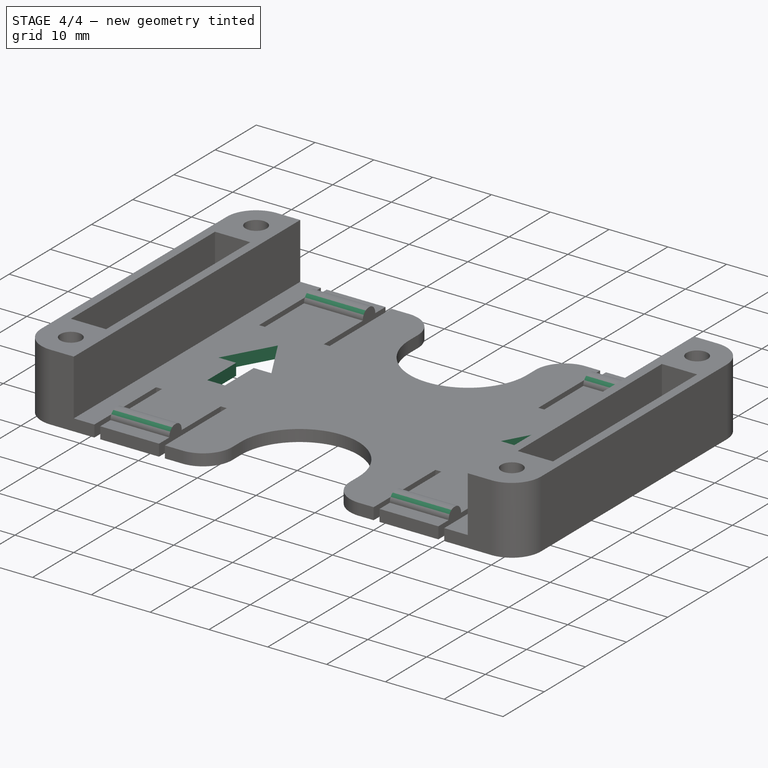
[diagram: stage 4 of 4 — iso view after this stage's code; geometry added in this stage tinted green]
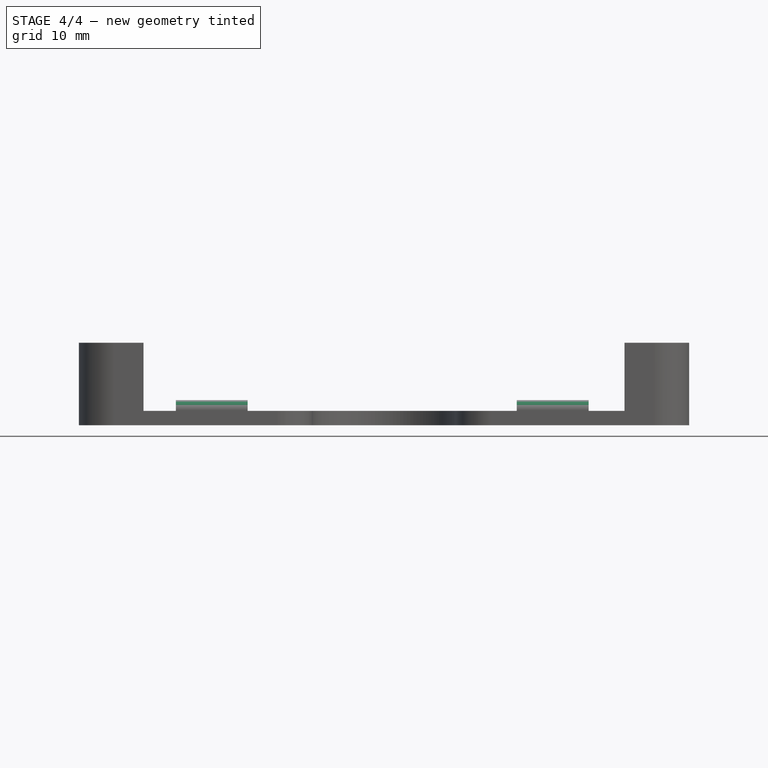
[diagram: stage 4 of 4 — front view after this stage's code; geometry added in this stage tinted green]
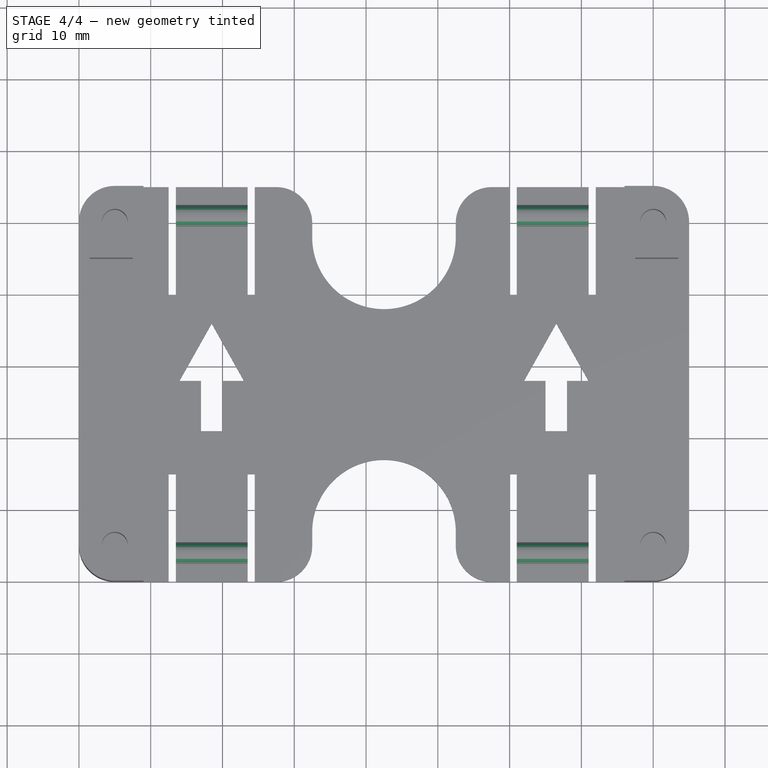
[diagram: stage 4 of 4 — top view after this stage's code; geometry added in this stage tinted green]
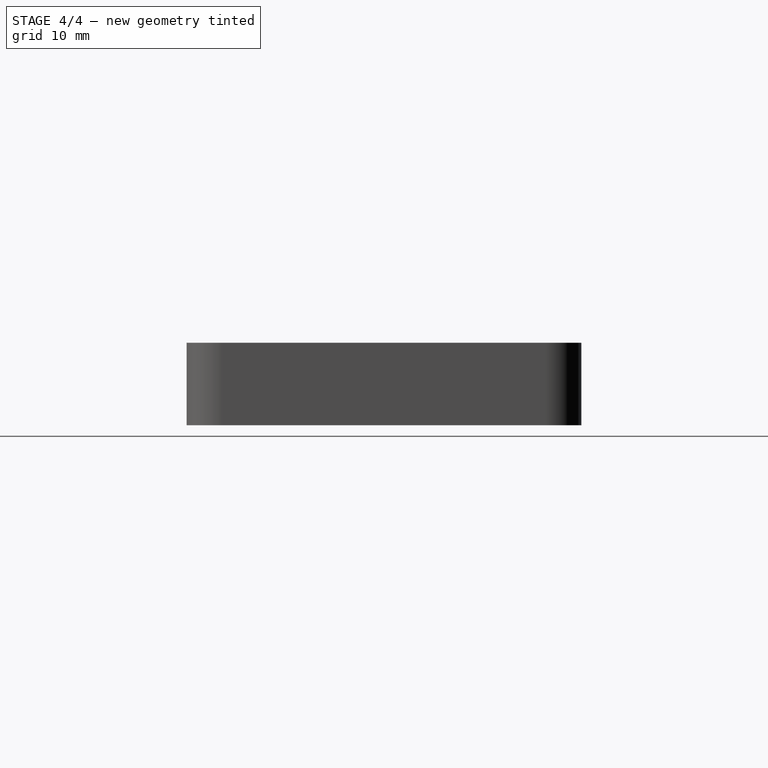
[diagram: stage 4 of 4 — right view after this stage's code; geometry added in this stage tinted green]
FEATURE [PartDesign::Fillet] Fillet
  Base = -> Pad001 [Edge133,Edge258,Edge264,Edge154,Edge176,Edge276,Edge284,Edge193]
  Radius = 1.4
FEATURE [Sketcher::SketchObject] Sketch005
  Placement = pos=(0,0,2) rot=(0,0,1;0rad)
  Support = -> Fillet [Face4]
  sketch-geometry (20):
    g0: LineSegment StartX=17 StartY=28 StartZ=0 EndX=14 EndY=28 EndZ=0
    g1: LineSegment StartX=14 StartY=28 StartZ=0 EndX=18.5 EndY=36 EndZ=0
    g2: LineSegment StartX=18.5 StartY=36 StartZ=0 EndX=23 EndY=28 EndZ=0
    g3: LineSegment StartX=23 StartY=28 StartZ=0 EndX=20 EndY=28 EndZ=0
    g4: LineSegment StartX=20 StartY=28 StartZ=0 EndX=20 EndY=21 EndZ=0
    g5: LineSegment StartX=20 StartY=21 StartZ=0 EndX=17 EndY=21 EndZ=0
    g6: LineSegment StartX=17 StartY=21 StartZ=0 EndX=17 EndY=28 EndZ=0
    g7: LineSegment [constr] StartX=20 StartY=28 StartZ=0 EndX=17 EndY=28 EndZ=0
    g8: LineSegment StartX=65 StartY=28 StartZ=0 EndX=62 EndY=28 EndZ=0
    g9: LineSegment StartX=62 StartY=28 StartZ=0 EndX=66.5 EndY=36 EndZ=0
    g10: LineSegment StartX=66.5 StartY=36 StartZ=0 EndX=71 EndY=28 EndZ=0
    g11: LineSegment StartX=71 StartY=28 StartZ=0 EndX=68 EndY=28 EndZ=0
    g12: LineSegment StartX=68 StartY=28 StartZ=0 EndX=68 EndY=21 EndZ=0
    g13: LineSegment StartX=68 StartY=21 StartZ=0 EndX=65 EndY=21 EndZ=0
    g14: LineSegment StartX=65 StartY=21 StartZ=0 EndX=65 EndY=28 EndZ=0
    g15: LineSegment [constr] StartX=65 StartY=28 StartZ=0 EndX=68 EndY=28 EndZ=0
    g16: LineSegment [constr] StartX=23 StartY=28 StartZ=0 EndX=42.5 EndY=28 EndZ=0
    g17: LineSegment [constr] StartX=42.5 StartY=28 StartZ=0 EndX=62 EndY=28 EndZ=0
    g18: LineSegment [constr] StartX=20 StartY=21 StartZ=0 EndX=65 EndY=21 EndZ=0
    g19: LineSegment [constr] StartX=18.5 StartY=36 StartZ=0 EndX=66.5 EndY=36 EndZ=0
  constraints (55):
    c: Horizontal(g0)
    c: Coincident(g0,g1)
    c: Coincident(g1,g2)
    c: Coincident(g2,g3)
    c: Coincident(g3,g4)
    c: Vertical(g4)
    c: Coincident(g4,g5)
    c: Horizontal(g5)
    c: Coincident(g5,g6)
    c: Coincident(g6,g0)
    c: Vertical(g6)
    c: Coincident(g7,g3)
    c: Coincident(g7,g0)
    c: Horizontal(g7)
    c: Horizontal(g3)
    c: Equal(g3,g0)
    c: Equal(g2,g1)
    c: DistanceY(g1,g5) = -15
    c: DistanceX(g2,g0) = -9
    c: DistanceX(g5,g4) = 3
    c: DistanceY(g4,g2) = 7
    c: Horizontal(g8)
    c: Coincident(g8,g9)
    c: Coincident(g9,g10)
    c: Coincident(g10,g11)
    c: Horizontal(g11)
    c: Coincident(g11,g12)
    c: Vertical(g12)
    c: Coincident(g12,g13)
    c: Horizontal(g13)
    c: Coincident(g13,g14)
    c: Coincident(g14,g8)
    c: Vertical(g14)
    c: Coincident(g15,g8)
    c: Coincident(g15,g11)
    c: Horizontal(g15)
    c: Equal(g11,g8)
    c: Coincident(g16,g2)
    c: Horizontal(g16)
    c: Coincident(g17,g16)
    c: Coincident(g17,g8)
    c: Horizontal(g17)
    c: Equal(g17,g16)
    c: DistanceX(g8,g10) = 9
    c: DistanceX(g13) = -3
    c: Coincident(g18,g4)
    c: Coincident(g18,g13)
    c: Horizontal(g18)
    c: Coincident(g19,g1)
    c: Coincident(g19,g9)
    c: Horizontal(g19)
    c: DistanceX(g1,g9) = 48
    c: Equal(g9,g10)
    c: DistanceX(g16) = 42.5
    c: DistanceY(g16) = 28
FEATURE [PartDesign::Pocket] Pocket006
  Length = 5
  Sketch = -> Sketch005
  Type = 0
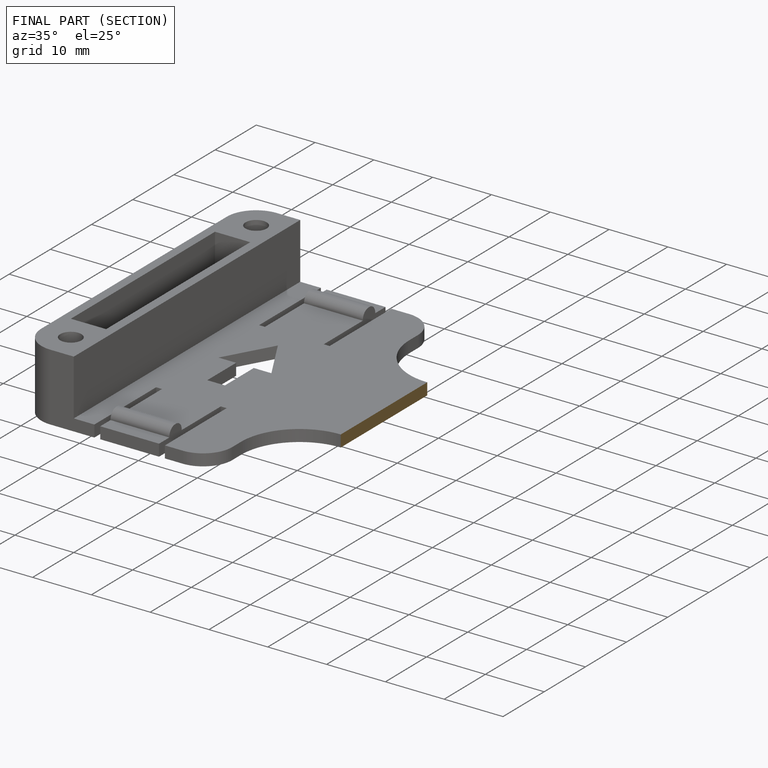
[diagram: finished part — half-section view (interior)]
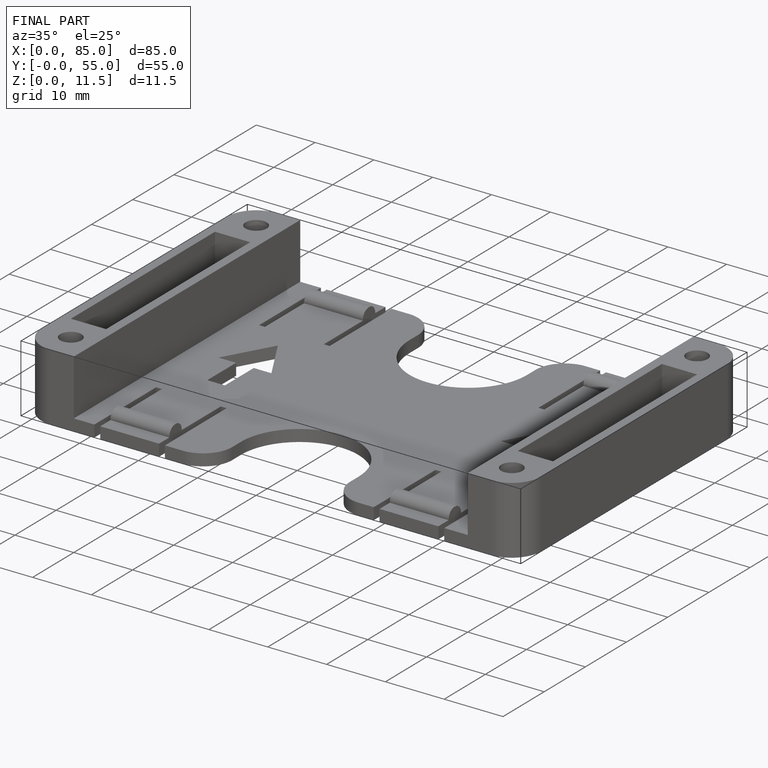
[diagram: finished part — iso view with bounding-box wireframe]
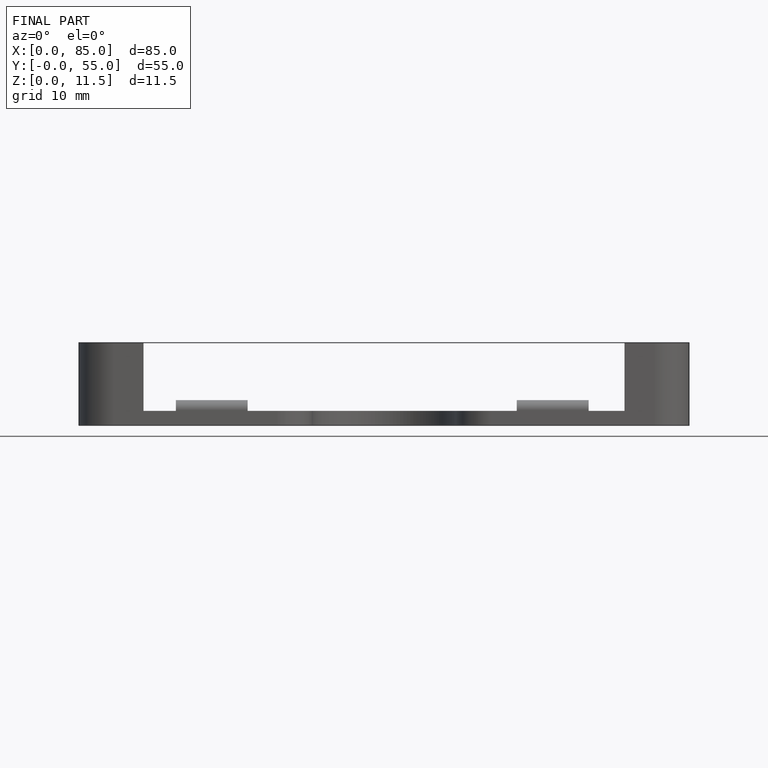
[diagram: finished part — front view with bounding-box wireframe]
